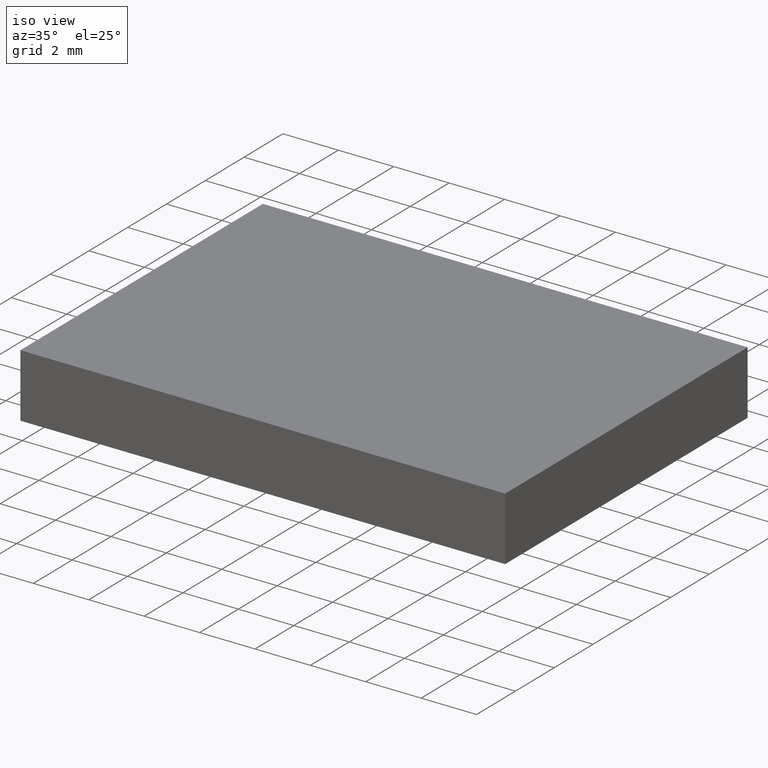
[diagram: clean part render]
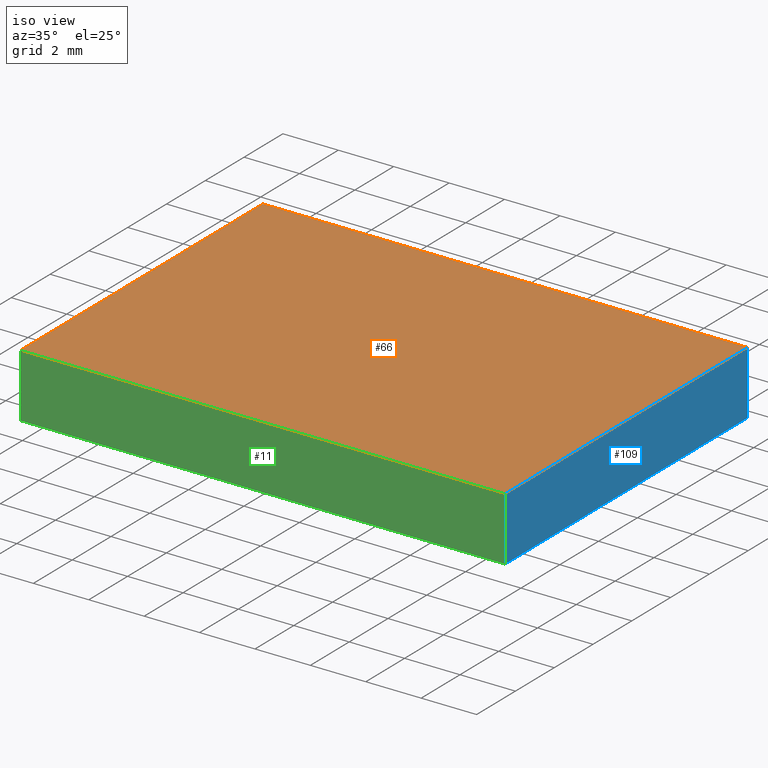
[diagram: same view with three faces highlighted in distinct colors, each labeled with its STEP entity id]
A machine part, iso view with three faces highlighted in distinct colors.
Their STEP definitions:

[orange] entity #66 — the highlighted planar face has unit normal (0, 0, 1).
#26 = CARTESIAN_POINT ( 'NONE',  ( 63.05749197114184300, 24.53162091726329700, 2.299999999999999800 ) ) ;
#27 = EDGE_LOOP ( 'NONE', ( #172, #68, #55, #102 ) ) ;
#32 = VERTEX_POINT ( 'NONE', #171 ) ;
#37 = CARTESIAN_POINT ( 'NONE',  ( 63.05749197114185700, 37.03162091726329700, 2.299999999999999800 ) ) ;
#45 = LINE ( 'NONE', #132, #160 ) ;
#46 = LINE ( 'NONE', #37, #96 ) ;
#47 = AXIS2_PLACEMENT_3D ( 'NONE', #59, #170, #75 ) ;
#52 = DIRECTION ( 'NONE',  ( 1.110223024625156700E-015, 1.000000000000000000, -0.0000000000000000000 ) ) ;
#55 = ORIENTED_EDGE ( 'NONE', *, *, #150, .T. ) ;
#59 = CARTESIAN_POINT ( 'NONE',  ( 0.0000000000000000000, 0.0000000000000000000, 2.299999999999999800 ) ) ;
#62 = EDGE_CURVE ( 'NONE', #32, #186, #45, .T. ) ;
#66 = ADVANCED_FACE ( 'NONE', ( #97 ), #153, .T. ) ;
#68 = ORIENTED_EDGE ( 'NONE', *, *, #166, .T. ) ;
#75 = DIRECTION ( 'NONE',  ( 1.000000000000000000, 0.0000000000000000000, -0.0000000000000000000 ) ) ;
#77 = CARTESIAN_POINT ( 'NONE',  ( 45.55749197114184300, 37.03162091726329000, 2.299999999999999800 ) ) ;
#85 = LINE ( 'NONE', #106, #113 ) ;
#96 = VECTOR ( 'NONE', #52, 1000.000000000000000 ) ;
#97 = FACE_OUTER_BOUND ( 'NONE', #27, .T. ) ;
#102 = ORIENTED_EDGE ( 'NONE', *, *, #62, .T. ) ;
#106 = CARTESIAN_POINT ( 'NONE',  ( 45.55749197114184300, 24.53162091726330000, 2.299999999999999800 ) ) ;
#113 = VECTOR ( 'NONE', #164, 1000.000000000000000 ) ;
#124 = CARTESIAN_POINT ( 'NONE',  ( 45.55749197114184300, 37.03162091726329000, 2.299999999999999800 ) ) ;
#132 = CARTESIAN_POINT ( 'NONE',  ( 45.55749197114184300, 37.03162091726329000, 2.299999999999999800 ) ) ;
#139 = EDGE_CURVE ( 'NONE', #186, #162, #176, .T. ) ;
#142 = CARTESIAN_POINT ( 'NONE',  ( 45.55749197114184300, 24.53162091726330000, 2.299999999999999800 ) ) ;
#149 = VERTEX_POINT ( 'NONE', #26 ) ;
#150 = EDGE_CURVE ( 'NONE', #149, #32, #46, .T. ) ;
#153 = PLANE ( 'NONE',  #47 ) ;
#160 = VECTOR ( 'NONE', #188, 1000.000000000000000 ) ;
#162 = VERTEX_POINT ( 'NONE', #142 ) ;
#164 = DIRECTION ( 'NONE',  ( 1.000000000000000000, -1.982541115402065800E-016, 0.0000000000000000000 ) ) ;
#166 = EDGE_CURVE ( 'NONE', #162, #149, #85, .T. ) ;
#170 = DIRECTION ( 'NONE',  ( 0.0000000000000000000, 0.0000000000000000000, 1.000000000000000000 ) ) ;
#171 = CARTESIAN_POINT ( 'NONE',  ( 63.05749197114185700, 37.03162091726329700, 2.299999999999999800 ) ) ;
#172 = ORIENTED_EDGE ( 'NONE', *, *, #139, .T. ) ;
#176 = LINE ( 'NONE', #124, #183 ) ;
#183 = VECTOR ( 'NONE', #195, 1000.000000000000000 ) ;
#186 = VERTEX_POINT ( 'NONE', #77 ) ;
#188 = DIRECTION ( 'NONE',  ( -1.000000000000000000, -3.965082230804128700E-016, -0.0000000000000000000 ) ) ;
#195 = DIRECTION ( 'NONE',  ( 0.0000000000000000000, -1.000000000000000000, 0.0000000000000000000 ) ) ;

[blue] entity #109 — the highlighted planar face has unit normal (-1, 0, 0).
#7 = CARTESIAN_POINT ( 'NONE',  ( 63.05749197114184300, 24.53162091726329700, 0.0000000000000000000 ) ) ;
#9 = ORIENTED_EDGE ( 'NONE', *, *, #150, .F. ) ;
#10 = CARTESIAN_POINT ( 'NONE',  ( 63.05749197114184300, 24.53162091726329700, 2.299999999999999800 ) ) ;
#17 = DIRECTION ( 'NONE',  ( 1.110223024625156700E-015, 1.000000000000000000, -0.0000000000000000000 ) ) ;
#26 = CARTESIAN_POINT ( 'NONE',  ( 63.05749197114184300, 24.53162091726329700, 2.299999999999999800 ) ) ;
#32 = VERTEX_POINT ( 'NONE', #171 ) ;
#37 = CARTESIAN_POINT ( 'NONE',  ( 63.05749197114185700, 37.03162091726329700, 2.299999999999999800 ) ) ;
#39 = LINE ( 'NONE', #98, #67 ) ;
#40 = AXIS2_PLACEMENT_3D ( 'NONE', #105, #190, #90 ) ;
#46 = LINE ( 'NONE', #37, #96 ) ;
#52 = DIRECTION ( 'NONE',  ( 1.110223024625156700E-015, 1.000000000000000000, -0.0000000000000000000 ) ) ;
#56 = EDGE_CURVE ( 'NONE', #88, #181, #39, .T. ) ;
#67 = VECTOR ( 'NONE', #17, 1000.000000000000000 ) ;
#69 = DIRECTION ( 'NONE',  ( -0.0000000000000000000, -0.0000000000000000000, -1.000000000000000000 ) ) ;
#79 = CARTESIAN_POINT ( 'NONE',  ( 63.05749197114185700, 37.03162091726329700, 0.0000000000000000000 ) ) ;
#88 = VERTEX_POINT ( 'NONE', #7 ) ;
#90 = DIRECTION ( 'NONE',  ( -1.110223024625156700E-015, -1.000000000000000000, 0.0000000000000000000 ) ) ;
#93 = VECTOR ( 'NONE', #140, 1000.000000000000000 ) ;
#96 = VECTOR ( 'NONE', #52, 1000.000000000000000 ) ;
#98 = CARTESIAN_POINT ( 'NONE',  ( 63.05749197114185700, 37.03162091726329700, 0.0000000000000000000 ) ) ;
#101 = ORIENTED_EDGE ( 'NONE', *, *, #184, .F. ) ;
#105 = CARTESIAN_POINT ( 'NONE',  ( 63.05749197114185700, 37.03162091726329700, 2.299999999999999800 ) ) ;
#109 = ADVANCED_FACE ( 'NONE', ( #167 ), #177, .F. ) ;
#115 = EDGE_LOOP ( 'NONE', ( #152, #101, #9, #134 ) ) ;
#118 = CARTESIAN_POINT ( 'NONE',  ( 63.05749197114185700, 37.03162091726329700, 2.299999999999999800 ) ) ;
#127 = EDGE_CURVE ( 'NONE', #149, #88, #151, .T. ) ;
#134 = ORIENTED_EDGE ( 'NONE', *, *, #127, .T. ) ;
#140 = DIRECTION ( 'NONE',  ( -0.0000000000000000000, -0.0000000000000000000, -1.000000000000000000 ) ) ;
#148 = VECTOR ( 'NONE', #69, 1000.000000000000000 ) ;
#149 = VERTEX_POINT ( 'NONE', #26 ) ;
#150 = EDGE_CURVE ( 'NONE', #149, #32, #46, .T. ) ;
#151 = LINE ( 'NONE', #10, #93 ) ;
#152 = ORIENTED_EDGE ( 'NONE', *, *, #56, .T. ) ;
#167 = FACE_OUTER_BOUND ( 'NONE', #115, .T. ) ;
#171 = CARTESIAN_POINT ( 'NONE',  ( 63.05749197114185700, 37.03162091726329700, 2.299999999999999800 ) ) ;
#173 = LINE ( 'NONE', #118, #148 ) ;
#177 = PLANE ( 'NONE',  #40 ) ;
#181 = VERTEX_POINT ( 'NONE', #79 ) ;
#184 = EDGE_CURVE ( 'NONE', #32, #181, #173, .T. ) ;
#190 = DIRECTION ( 'NONE',  ( -1.000000000000000000, 1.110223024625156700E-015, 0.0000000000000000000 ) ) ;

[green] entity #11 — the highlighted planar face has unit normal (0, 1, -0).
#2 = FACE_OUTER_BOUND ( 'NONE', #117, .T. ) ;
#7 = CARTESIAN_POINT ( 'NONE',  ( 63.05749197114184300, 24.53162091726329700, 0.0000000000000000000 ) ) ;
#10 = CARTESIAN_POINT ( 'NONE',  ( 63.05749197114184300, 24.53162091726329700, 2.299999999999999800 ) ) ;
#11 = ADVANCED_FACE ( 'NONE', ( #2 ), #174, .F. ) ;
#16 = ORIENTED_EDGE ( 'NONE', *, *, #114, .T. ) ;
#26 = CARTESIAN_POINT ( 'NONE',  ( 63.05749197114184300, 24.53162091726329700, 2.299999999999999800 ) ) ;
#36 = ORIENTED_EDGE ( 'NONE', *, *, #133, .T. ) ;
#54 = DIRECTION ( 'NONE',  ( -0.0000000000000000000, -0.0000000000000000000, -1.000000000000000000 ) ) ;
#61 = ORIENTED_EDGE ( 'NONE', *, *, #166, .F. ) ;
#76 = DIRECTION ( 'NONE',  ( -1.000000000000000000, 1.982541115402066100E-016, 0.0000000000000000000 ) ) ;
#80 = CARTESIAN_POINT ( 'NONE',  ( 45.55749197114184300, 24.53162091726330000, 0.0000000000000000000 ) ) ;
#85 = LINE ( 'NONE', #106, #113 ) ;
#87 = DIRECTION ( 'NONE',  ( 1.982541115402066100E-016, 1.000000000000000000, -0.0000000000000000000 ) ) ;
#88 = VERTEX_POINT ( 'NONE', #7 ) ;
#93 = VECTOR ( 'NONE', #140, 1000.000000000000000 ) ;
#104 = CARTESIAN_POINT ( 'NONE',  ( 45.55749197114184300, 24.53162091726330000, 2.299999999999999800 ) ) ;
#106 = CARTESIAN_POINT ( 'NONE',  ( 45.55749197114184300, 24.53162091726330000, 2.299999999999999800 ) ) ;
#107 = CARTESIAN_POINT ( 'NONE',  ( 45.55749197114184300, 24.53162091726330000, 0.0000000000000000000 ) ) ;
#113 = VECTOR ( 'NONE', #164, 1000.000000000000000 ) ;
#114 = EDGE_CURVE ( 'NONE', #162, #145, #202, .T. ) ;
#117 = EDGE_LOOP ( 'NONE', ( #36, #198, #61, #16 ) ) ;
#120 = CARTESIAN_POINT ( 'NONE',  ( 45.55749197114184300, 24.53162091726330000, 2.299999999999999800 ) ) ;
#127 = EDGE_CURVE ( 'NONE', #149, #88, #151, .T. ) ;
#133 = EDGE_CURVE ( 'NONE', #145, #88, #193, .T. ) ;
#140 = DIRECTION ( 'NONE',  ( -0.0000000000000000000, -0.0000000000000000000, -1.000000000000000000 ) ) ;
#142 = CARTESIAN_POINT ( 'NONE',  ( 45.55749197114184300, 24.53162091726330000, 2.299999999999999800 ) ) ;
#143 = VECTOR ( 'NONE', #54, 1000.000000000000000 ) ;
#145 = VERTEX_POINT ( 'NONE', #107 ) ;
#149 = VERTEX_POINT ( 'NONE', #26 ) ;
#151 = LINE ( 'NONE', #10, #93 ) ;
#156 = DIRECTION ( 'NONE',  ( 1.000000000000000000, -1.982541115402065800E-016, 0.0000000000000000000 ) ) ;
#162 = VERTEX_POINT ( 'NONE', #142 ) ;
#163 = VECTOR ( 'NONE', #156, 1000.000000000000000 ) ;
#164 = DIRECTION ( 'NONE',  ( 1.000000000000000000, -1.982541115402065800E-016, 0.0000000000000000000 ) ) ;
#166 = EDGE_CURVE ( 'NONE', #162, #149, #85, .T. ) ;
#174 = PLANE ( 'NONE',  #192 ) ;
#192 = AXIS2_PLACEMENT_3D ( 'NONE', #104, #87, #76 ) ;
#193 = LINE ( 'NONE', #80, #163 ) ;
#198 = ORIENTED_EDGE ( 'NONE', *, *, #127, .F. ) ;
#202 = LINE ( 'NONE', #120, #143 ) ;